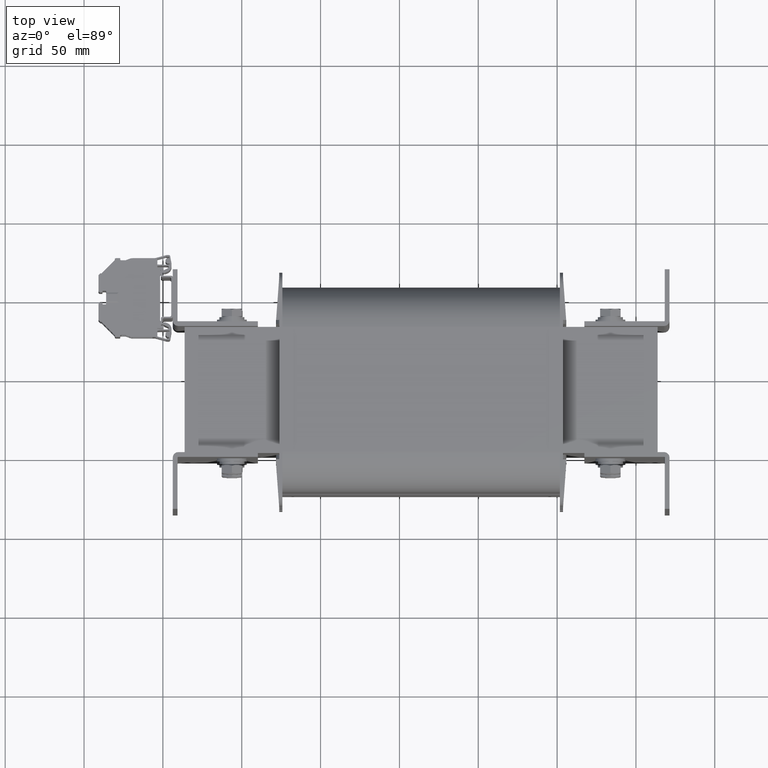
[diagram: clean part render]
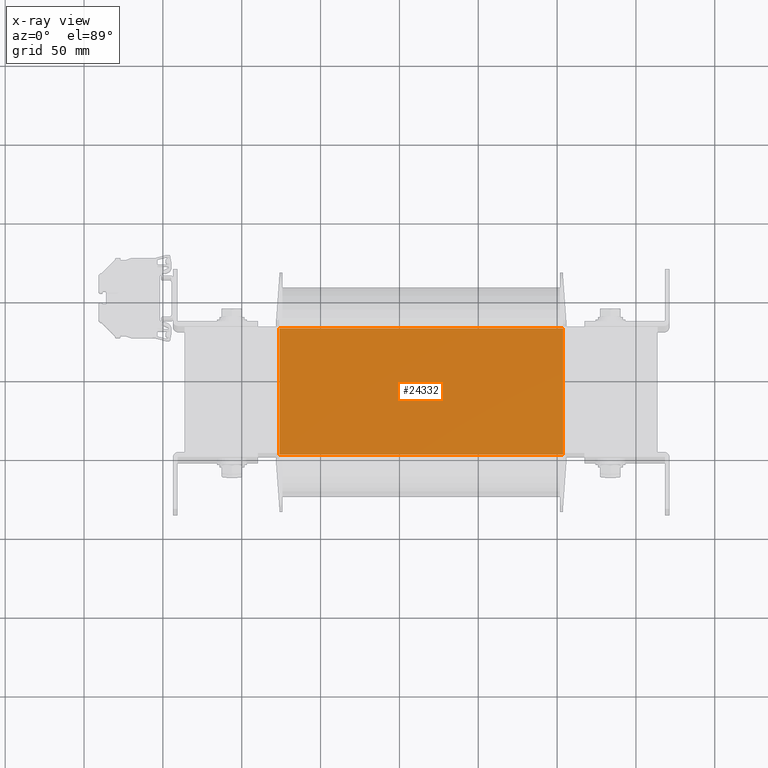
[diagram: x-ray — body ghosted, one internal face saturated and labeled with its STEP entity id]
A machine part, top view, then the same camera in x-ray: the body is ghosted and one INTERNAL B-rep face — a face not visible from any outside direction — is saturated and labeled: STEP entity #24332.
In plain terms, the highlighted planar face has unit normal (-0, 0, -1).
Its self-contained STEP definition (entity closure, byte-faithful):
#2378=FACE_OUTER_BOUND('',#3734,.T.);
#3734=EDGE_LOOP('',(#16284,#16285,#16286,#16287));
#5178=LINE('',#35400,#7775);
#5179=LINE('',#35402,#7776);
#5180=LINE('',#35404,#7777);
#5181=LINE('',#35405,#7778);
#7775=VECTOR('',#28266,10.);
#7776=VECTOR('',#28267,10.);
#7777=VECTOR('',#28268,10.);
#7778=VECTOR('',#28269,10.);
#10372=VERTEX_POINT('',#35398);
#10373=VERTEX_POINT('',#35399);
#10374=VERTEX_POINT('',#35401);
#10375=VERTEX_POINT('',#35403);
#12679=EDGE_CURVE('',#10372,#10373,#5178,.T.);
#12680=EDGE_CURVE('',#10373,#10374,#5179,.T.);
#12681=EDGE_CURVE('',#10375,#10374,#5180,.T.);
#12682=EDGE_CURVE('',#10372,#10375,#5181,.T.);
#16284=ORIENTED_EDGE('',*,*,#12679,.T.);
#16285=ORIENTED_EDGE('',*,*,#12680,.T.);
#16286=ORIENTED_EDGE('',*,*,#12681,.F.);
#16287=ORIENTED_EDGE('',*,*,#12682,.F.);
#23494=PLANE('',#25993);
#24332=ADVANCED_FACE('',(#2378),#23494,.T.);
#25993=AXIS2_PLACEMENT_3D('',#35397,#28264,#28265);
#28264=DIRECTION('center_axis',(-1.08555140185571E-15,0.,-1.));
#28265=DIRECTION('ref_axis',(-1.,0.,1.08555140185571E-15));
#28266=DIRECTION('',(-1.,0.,1.08555140185571E-15));
#28267=DIRECTION('',(0.,1.,0.));
#28268=DIRECTION('',(-1.,0.,1.08555140185571E-15));
#28269=DIRECTION('',(0.,1.,0.));
#35397=CARTESIAN_POINT('Origin',(-59.9999999999999,0.,120.));
#35398=CARTESIAN_POINT('',(-59.9999999999999,0.,120.));
#35399=CARTESIAN_POINT('',(-240.,0.,120.));
#35400=CARTESIAN_POINT('',(-59.9999999999999,0.,120.));
#35401=CARTESIAN_POINT('',(-240.,80.,120.));
#35402=CARTESIAN_POINT('',(-240.,0.,120.));
#35403=CARTESIAN_POINT('',(-59.9999999999999,80.,120.));
#35404=CARTESIAN_POINT('',(-59.9999999999999,80.,120.));
#35405=CARTESIAN_POINT('',(-59.9999999999999,0.,120.));